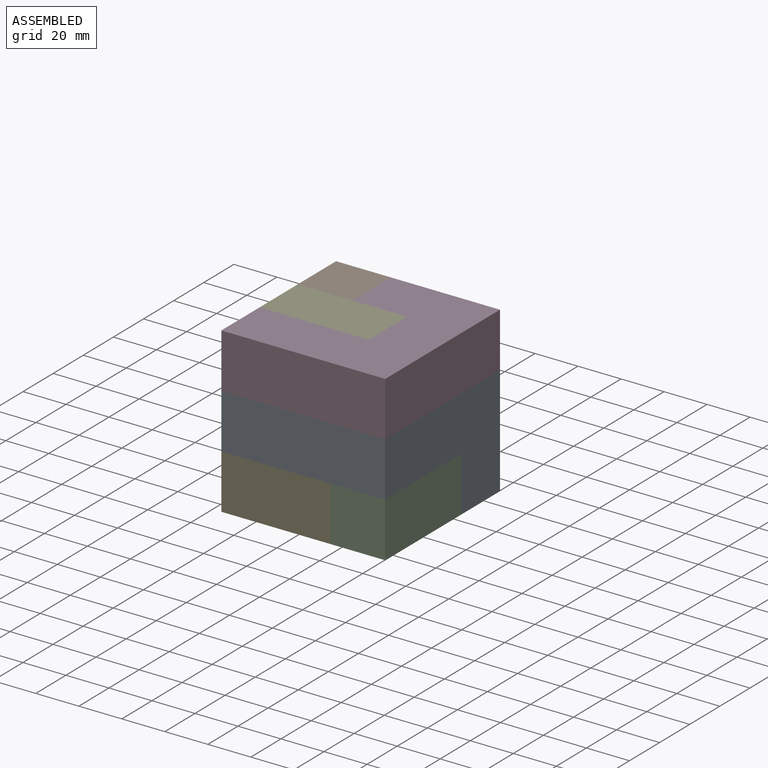
[diagram: assembled view]
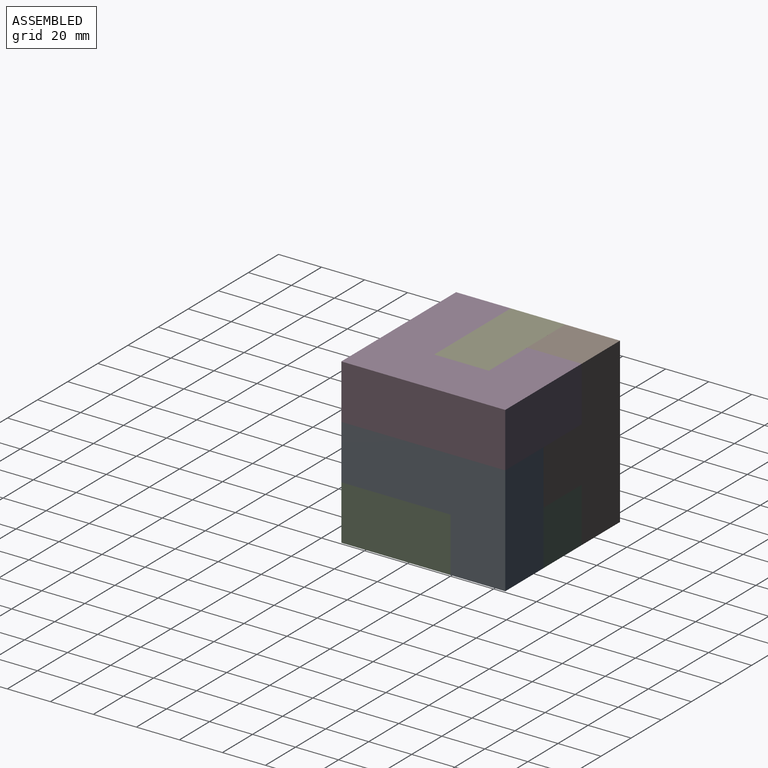
[diagram: assembled view, second angle]
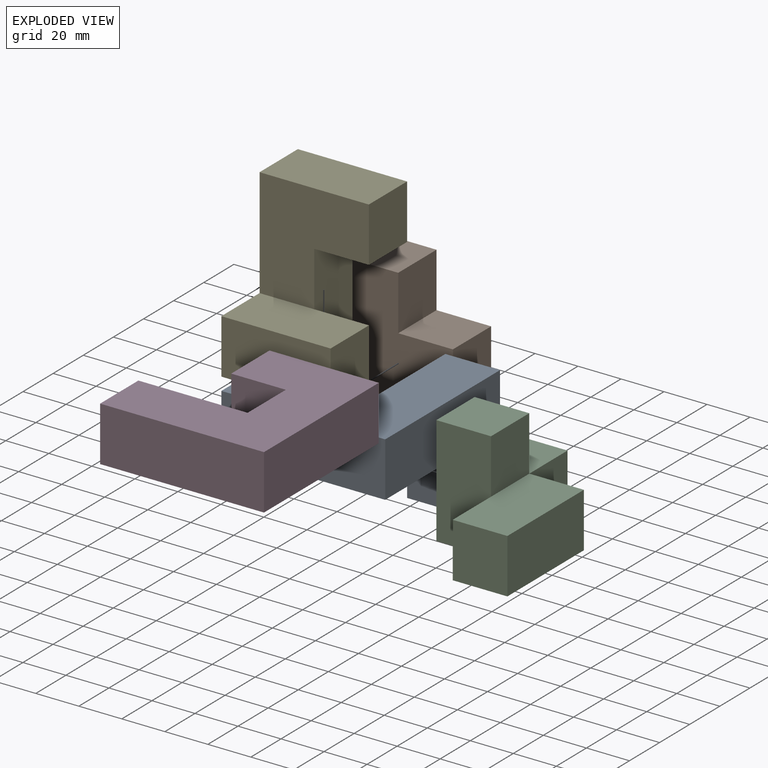
[diagram: exploded view]
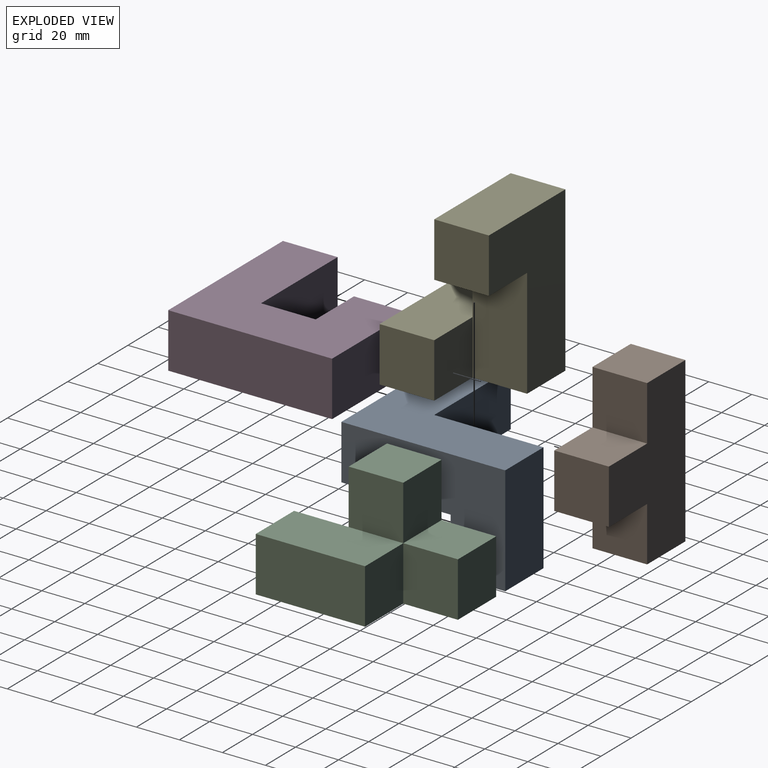
[diagram: exploded view, second angle]
ASSEMBLY  parts=5 mates=12
PART A: 10 faces, bbox 76.2x76.2x50.8 mm
  f0: plane 76.2x50.8mm, normal (0,0,-1), area 2580.6mm2, adj f1,f3,f4,f5,f6,f8
  f1: plane 76.2x50.8mm, normal (1,0,0), area 2580.6mm2, adj f0,f2,f4,f7,f8,f9
  f2: plane 76.2x76.2mm, normal (0,0,1), area 3225.8mm2, adj f1,f3,f4,f5,f6,f7
  f3: plane 25.4x25.4mm, normal (-1,0,0), area 645.2mm2, adj f0,f2,f4,f5
  f4: plane 76.2x25.4mm, normal (0,-1,0), area 1935.5mm2, adj f0,f1,f2,f3
  f5: plane 50.8x25.4mm, normal (0,1,0), area 1290.3mm2, adj f0,f2,f3,f6
  f6: plane 50.8x50.8mm, normal (-1,0,0), area 1935.5mm2, adj f0,f2,f5,f7,f8,f9
  f7: plane 50.8x25.4mm, normal (0,1,0), area 1290.3mm2, adj f1,f2,f6,f9
  f8: plane 25.4x25.4mm, normal (0,-1,0), area 645.2mm2, adj f0,f1,f6,f9
  f9: plane 25.4x25.4mm, normal (0,0,-1), area 645.2mm2, adj f1,f6,f7,f8
PART B: 10 faces, bbox 50.8x25.4x76.2 mm
  f0: plane 25.4x25.4mm, normal (0,0,-1), area 645.2mm2, adj f1,f7,f8,f9
  f1: plane 25.4x25.4mm, normal (1,0,0), area 645.2mm2, adj f0,f2,f8,f9
  f2: plane 25.4x25.4mm, normal (0,0,1), area 645.2mm2, adj f1,f3,f8,f9
  f3: plane 25.4x25.4mm, normal (1,0,0), area 645.2mm2, adj f2,f4,f8,f9
  f4: plane 25.4x25.4mm, normal (0,0,1), area 645.2mm2, adj f3,f5,f8,f9
  f5: plane 76.2x25.4mm, normal (-1,0,0), area 1935.5mm2, adj f4,f6,f8,f9
  f6: plane 25.4x25.4mm, normal (0,0,-1), area 645.2mm2, adj f5,f7,f8,f9
  f7: plane 25.4x25.4mm, normal (1,0,0), area 645.2mm2, adj f0,f6,f8,f9
  f8: plane 76.2x50.8mm, normal (0,-1,0), area 2580.6mm2, adj f0,f1,f2,f3,f4,f5,f6,f7
  f9: plane 76.2x50.8mm, normal (0,1,0), area 2580.6mm2, adj f0,f1,f2,f3,f4,f5,f6,f7
PART C: 14 faces, bbox 50.8x76.2x50.8 mm
  f0: plane 25.4x25.4mm, normal (0,1,0), area 645.2mm2, adj f1,f3,f4,f12
  f1: plane 50.8x25.4mm, normal (0,0,1), area 1290.3mm2, adj f0,f2,f4,f5,f9
  f2: plane 25.4x25.4mm, normal (-1,0,0), area 645.2mm2, adj f1,f3,f5,f8
  f3: plane 76.2x50.8mm, normal (0,0,-1), area 2580.6mm2, adj f0,f2,f4,f5,f7,f8,f12,f13
  f4: plane 50.8x25.4mm, normal (1,0,0), area 1290.3mm2, adj f0,f1,f3,f5
  f5: plane 25.4x25.4mm, normal (0,-1,0), area 645.2mm2, adj f1,f2,f3,f4
  f6: plane 25.4x25.4mm, normal (0,1,0), area 645.2mm2, adj f7,f9,f10,f11
  f7: plane 50.8x50.8mm, normal (-1,0,0), area 1935.5mm2, adj f3,f6,f8,f10,f11,f13
  f8: plane 50.8x25.4mm, normal (0,-1,0), area 1290.3mm2, adj f2,f3,f7,f9,f10
  f9: plane 25.4x25.4mm, normal (1,0,0), area 645.2mm2, adj f1,f6,f8,f10
  f10: plane 25.4x25.4mm, normal (0,0,1), area 645.2mm2, adj f6,f7,f8,f9
  f11: plane 25.4x25.4mm, normal (0,0,1), area 645.2mm2, adj f6,f7,f12,f13
  f12: plane 25.4x25.4mm, normal (1,0,0), area 645.2mm2, adj f0,f3,f11,f13
  f13: plane 25.4x25.4mm, normal (0,1,0), area 645.2mm2, adj f3,f7,f11,f12
PART D: 10 faces, bbox 76.2x76.2x25.4 mm
  f0: plane 25.4x25.4mm, normal (-1,0,0), area 645.2mm2, adj f1,f3,f6,f8
  f1: plane 76.2x76.2mm, normal (0,0,-1), area 3871mm2, adj f0,f2,f4,f5,f6,f7,f8,f9
  f2: plane 76.2x25.4mm, normal (1,0,0), area 1935.5mm2, adj f1,f3,f5,f7
  f3: plane 76.2x76.2mm, normal (0,0,1), area 3871mm2, adj f0,f2,f4,f5,f6,f7,f8,f9
  f4: plane 25.4x25.4mm, normal (-1,0,0), area 645.2mm2, adj f1,f3,f5,f6
  f5: plane 76.2x25.4mm, normal (0,-1,0), area 1935.5mm2, adj f1,f2,f3,f4
  f6: plane 50.8x25.4mm, normal (0,1,0), area 1290.3mm2, adj f0,f1,f3,f4
  f7: plane 50.8x25.4mm, normal (0,1,0), area 1290.3mm2, adj f1,f2,f3,f9
  f8: plane 25.4x25.4mm, normal (0,-1,0), area 645.2mm2, adj f0,f1,f3,f9
  f9: plane 25.4x25.4mm, normal (-1,0,0), area 645.2mm2, adj f1,f3,f7,f8
PART E: 12 faces, bbox 50.8x50.8x76.2 mm
  f0: plane 50.8x25.4mm, normal (1,0,0), area 1290.3mm2, adj f1,f5,f6,f7,f8
  f1: plane 25.4x25.4mm, normal (0,0,-1), area 645.2mm2, adj f0,f2,f6,f7
  f2: plane 25.4x25.4mm, normal (1,0,0), area 645.2mm2, adj f1,f3,f6,f7
  f3: plane 50.8x25.4mm, normal (0,0,1), area 1290.3mm2, adj f2,f4,f6,f7
  f4: plane 76.2x50.8mm, normal (-1,0,0), area 2580.6mm2, adj f3,f5,f6,f7,f9,f10
  f5: plane 50.8x50.8mm, normal (0,0,-1), area 1935.5mm2, adj f0,f4,f7,f8,f10,f11
  f6: plane 50.8x50.8mm, normal (0,-1,0), area 1935.5mm2, adj f0,f1,f2,f3,f4,f9
  f7: plane 76.2x50.8mm, normal (0,1,0), area 2580.6mm2, adj f0,f1,f2,f3,f4,f5
  f8: plane 25.4x25.4mm, normal (0,1,0), area 645.2mm2, adj f0,f5,f9,f11
  f9: plane 50.8x25.4mm, normal (0,0,1), area 1290.3mm2, adj f4,f6,f8,f10,f11
  f10: plane 50.8x25.4mm, normal (0,-1,0), area 1290.3mm2, adj f4,f5,f9,f11
  f11: plane 25.4x25.4mm, normal (1,0,0), area 645.2mm2, adj f5,f8,f9,f10
PLACE A t=(77.25,-83.48,-66.45)mm
PLACE B t=(51.85,-32.68,-66.45)mm
PLACE C t=(77.25,-58.08,-66.45)mm
PLACE D t=(64.55,-83.48,-28.35)mm
PLACE E t=(51.85,-70.78,-66.45)mm
MATE fastened E.f11 <-> C.f2  axis (1,0,0) through (77.25,-96.18,-79.15)mm
MATE planar D.f5 <-> A.f4  axis (0,-1,0) through (102.65,-108.88,-28.35)mm
MATE planar A.f7 <-> B.f9  axis (0,1,0) through (89.95,-32.68,-66.45)mm
MATE planar D.f2 <-> A.f1  axis (1,0,0) through (102.65,-32.68,-28.35)mm
MATE planar C.f1 <-> E.f9  axis (0,0,1) through (89.95,-83.48,-66.45)mm
MATE planar A.f0 <-> E.f9  axis (0,0,-1) through (70.9,-89.83,-66.45)mm
MATE planar A.f4 <-> E.f10  axis (0,-1,0) through (64.55,-108.88,-53.75)mm
MATE planar B.f6 <-> C.f3  axis (0,0,-1) through (39.15,-45.38,-91.85)mm
MATE planar C.f7 <-> B.f7  axis (-1,0,0) through (51.85,-32.68,-79.15)mm
MATE planar E.f6 <-> C.f8  axis (0,-1,0) through (47.61,-83.48,-36.82)mm
MATE planar A.f1 <-> C.f4  axis (1,0,0) through (102.65,-64.43,-60.1)mm
MATE planar D.f1 <-> A.f2  axis (0,0,-1) through (102.65,-70.78,-41.05)mm
